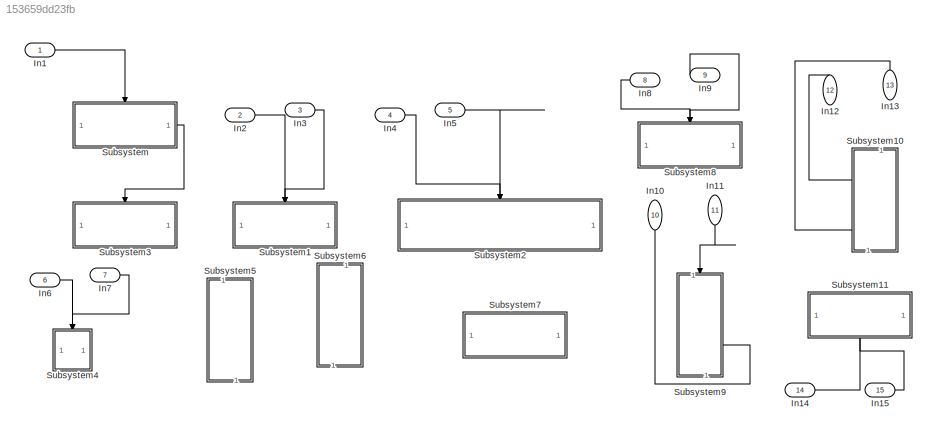
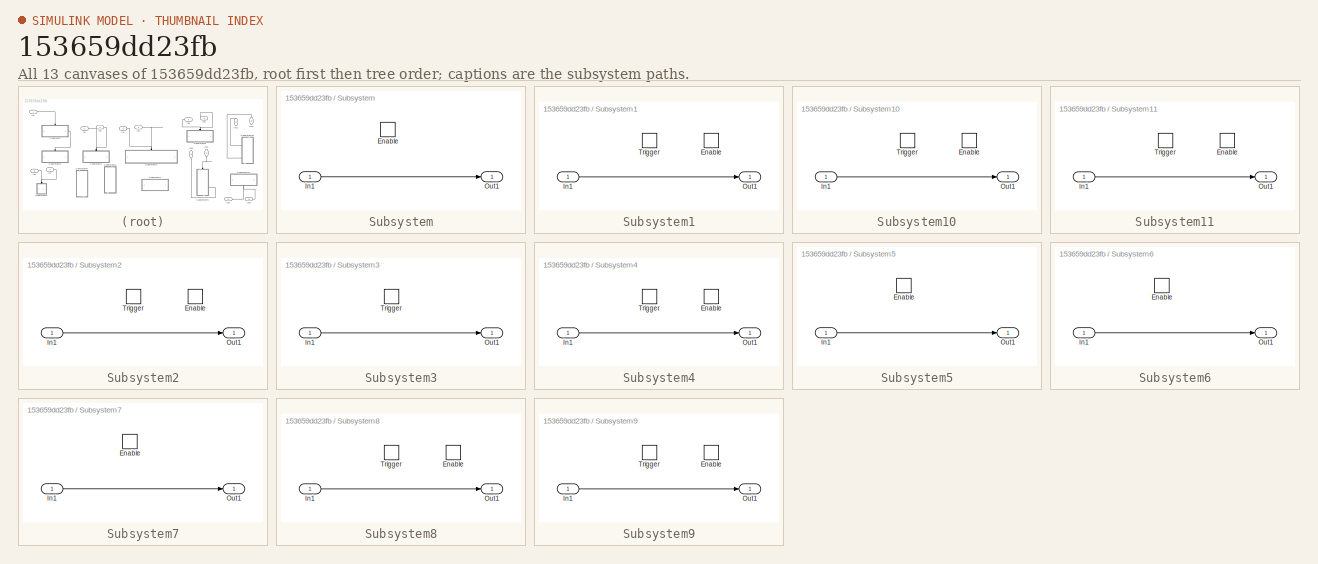
[diagram: thumbnail index - all 13 canvases of the model, root first then tree order]
MODEL slx_153659dd23fb
KIND model
BLOCK [Inport] In1
  IconDisplay = Port number
BLOCK [Inport] In10
  IconDisplay = Port number
  Port = 10
BLOCK [Inport] In11
  IconDisplay = Port number
  Port = 11
BLOCK [Inport] In12
  IconDisplay = Port number
  Port = 12
BLOCK [Inport] In13
  IconDisplay = Port number
  Port = 13
BLOCK [Inport] In14
  IconDisplay = Port number
  Port = 14
BLOCK [Inport] In15
  IconDisplay = Port number
  Port = 15
BLOCK [Inport] In2
  IconDisplay = Port number
  Port = 2
BLOCK [Inport] In3
  IconDisplay = Port number
  Port = 3
BLOCK [Inport] In4
  IconDisplay = Port number
  Port = 4
BLOCK [Inport] In5
  IconDisplay = Port number
  Port = 5
BLOCK [Inport] In6
  IconDisplay = Port number
  Port = 6
BLOCK [Inport] In7
  IconDisplay = Port number
  Port = 7
BLOCK [Inport] In8
  IconDisplay = Port number
  Port = 8
BLOCK [Inport] In9
  IconDisplay = Port number
  Port = 9
BLOCK [SubSystem] Subsystem
  Ports = [1, 1, 1]
  RequestExecContextInheritance = off
BLOCK [EnablePort] Subsystem/Enable
  Ports = []
BLOCK [Inport] Subsystem/In1
  IconDisplay = Port number
BLOCK [Outport] Subsystem/Out1
  IconDisplay = Port number
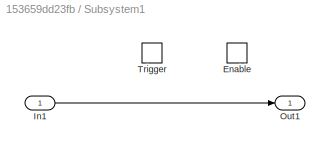
BLOCK [SubSystem] Subsystem1
  Ports = [1, 1, 1, 1]
  RequestExecContextInheritance = off
BLOCK [EnablePort] Subsystem1/Enable
  Ports = []
BLOCK [Inport] Subsystem1/In1
  IconDisplay = Port number
BLOCK [Outport] Subsystem1/Out1
  IconDisplay = Port number
BLOCK [TriggerPort] Subsystem1/Trigger
  PortDimensions = 1
  Ports = []
  StatesWhenEnabling = held
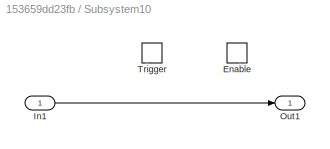
BLOCK [SubSystem] Subsystem10
  Ports = [1, 1, 1, 1]
  RequestExecContextInheritance = off
BLOCK [EnablePort] Subsystem10/Enable
  Ports = []
BLOCK [Inport] Subsystem10/In1
  IconDisplay = Port number
BLOCK [Outport] Subsystem10/Out1
  IconDisplay = Port number
BLOCK [TriggerPort] Subsystem10/Trigger
  PortDimensions = 1
  Ports = []
  StatesWhenEnabling = held
BLOCK [SubSystem] Subsystem11
  Ports = [1, 1, 1, 1]
  RequestExecContextInheritance = off
BLOCK [EnablePort] Subsystem11/Enable
  Ports = []
BLOCK [Inport] Subsystem11/In1
  IconDisplay = Port number
BLOCK [Outport] Subsystem11/Out1
  IconDisplay = Port number
BLOCK [TriggerPort] Subsystem11/Trigger
  PortDimensions = 1
  Ports = []
  StatesWhenEnabling = held
BLOCK [SubSystem] Subsystem2
  Ports = [1, 1, 1, 1]
  RequestExecContextInheritance = off
BLOCK [EnablePort] Subsystem2/Enable
  Ports = []
BLOCK [Inport] Subsystem2/In1
  IconDisplay = Port number
BLOCK [Outport] Subsystem2/Out1
  IconDisplay = Port number
BLOCK [TriggerPort] Subsystem2/Trigger
  PortDimensions = 1
  Ports = []
  StatesWhenEnabling = held
BLOCK [SubSystem] Subsystem3
  Ports = [1, 1, 0, 1]
  RequestExecContextInheritance = off
BLOCK [Inport] Subsystem3/In1
  IconDisplay = Port number
BLOCK [Outport] Subsystem3/Out1
  IconDisplay = Port number
BLOCK [TriggerPort] Subsystem3/Trigger
  PortDimensions = 1
  Ports = []
  StatesWhenEnabling = held
BLOCK [SubSystem] Subsystem4
  Ports = [1, 1, 1, 1]
  RequestExecContextInheritance = off
BLOCK [EnablePort] Subsystem4/Enable
  Ports = []
BLOCK [Inport] Subsystem4/In1
  IconDisplay = Port number
BLOCK [Outport] Subsystem4/Out1
  IconDisplay = Port number
BLOCK [TriggerPort] Subsystem4/Trigger
  PortDimensions = 1
  Ports = []
  StatesWhenEnabling = held
BLOCK [SubSystem] Subsystem5
  Ports = [1, 1, 1]
  RequestExecContextInheritance = off
BLOCK [EnablePort] Subsystem5/Enable
  Ports = []
BLOCK [Inport] Subsystem5/In1
  IconDisplay = Port number
BLOCK [Outport] Subsystem5/Out1
  IconDisplay = Port number
BLOCK [SubSystem] Subsystem6
  Ports = [1, 1, 1]
  RequestExecContextInheritance = off
BLOCK [EnablePort] Subsystem6/Enable
  Ports = []
BLOCK [Inport] Subsystem6/In1
  IconDisplay = Port number
BLOCK [Outport] Subsystem6/Out1
  IconDisplay = Port number
BLOCK [SubSystem] Subsystem7
  Ports = [1, 1, 1]
  RequestExecContextInheritance = off
BLOCK [EnablePort] Subsystem7/Enable
  Ports = []
BLOCK [Inport] Subsystem7/In1
  IconDisplay = Port number
BLOCK [Outport] Subsystem7/Out1
  IconDisplay = Port number
BLOCK [SubSystem] Subsystem8
  Ports = [1, 1, 1, 1]
  RequestExecContextInheritance = off
BLOCK [EnablePort] Subsystem8/Enable
  Ports = []
BLOCK [Inport] Subsystem8/In1
  IconDisplay = Port number
BLOCK [Outport] Subsystem8/Out1
  IconDisplay = Port number
BLOCK [TriggerPort] Subsystem8/Trigger
  PortDimensions = 1
  Ports = []
  StatesWhenEnabling = held
BLOCK [SubSystem] Subsystem9
  Ports = [1, 1, 1, 1]
  RequestExecContextInheritance = off
BLOCK [EnablePort] Subsystem9/Enable
  Ports = []
BLOCK [Inport] Subsystem9/In1
  IconDisplay = Port number
BLOCK [Outport] Subsystem9/Out1
  IconDisplay = Port number
BLOCK [TriggerPort] Subsystem9/Trigger
  PortDimensions = 1
  Ports = []
  StatesWhenEnabling = held
LINE In10:1 -> Subsystem9:enable
LINE In11:1 -> Subsystem9:trigger
LINE In12:1 -> Subsystem10:enable
LINE In13:1 -> Subsystem10:trigger
LINE In14:1 -> Subsystem11:enable
LINE In15:1 -> Subsystem11:trigger
LINE In1:1 -> Subsystem:enable
LINE In2:1 -> Subsystem1:enable
LINE In3:1 -> Subsystem1:trigger
LINE In4:1 -> Subsystem2:enable
LINE In5:1 -> Subsystem2:trigger
LINE In6:1 -> Subsystem4:enable
LINE In7:1 -> Subsystem4:trigger
LINE In8:1 -> Subsystem8:enable
LINE In9:1 -> Subsystem8:trigger
LINE Subsystem/In1:1 -> Subsystem/Out1:1
LINE Subsystem1/In1:1 -> Subsystem1/Out1:1
LINE Subsystem10/In1:1 -> Subsystem10/Out1:1
LINE Subsystem11/In1:1 -> Subsystem11/Out1:1
LINE Subsystem2/In1:1 -> Subsystem2/Out1:1
LINE Subsystem3/In1:1 -> Subsystem3/Out1:1
LINE Subsystem4/In1:1 -> Subsystem4/Out1:1
LINE Subsystem5/In1:1 -> Subsystem5/Out1:1
LINE Subsystem6/In1:1 -> Subsystem6/Out1:1
LINE Subsystem7/In1:1 -> Subsystem7/Out1:1
LINE Subsystem8/In1:1 -> Subsystem8/Out1:1
LINE Subsystem9/In1:1 -> Subsystem9/Out1:1
LINE Subsystem:1 -> Subsystem3:trigger
